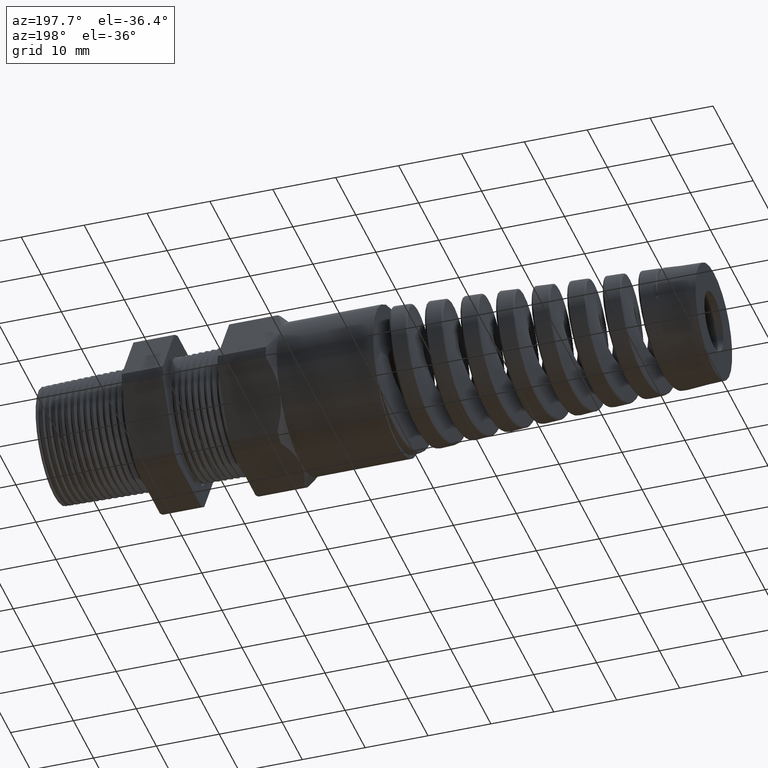
[diagram: clean part render]
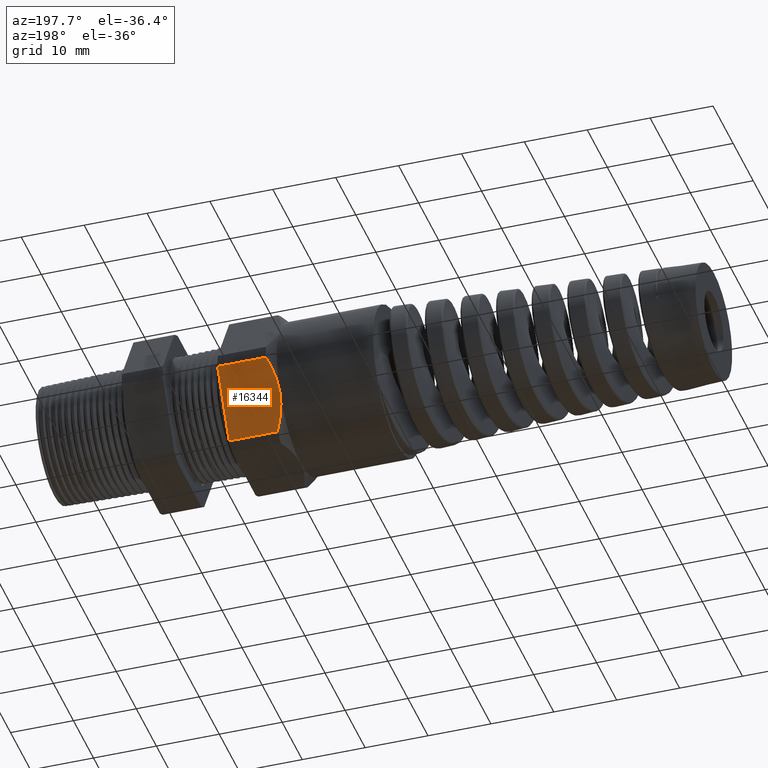
[diagram: same view with one face highlighted and labeled with its STEP entity id]
A machine part, auxiliary view. The second image highlights one B-rep face of the part: STEP entity #16344.
In plain terms, the highlighted planar face has unit normal (0, 0.866, -0.5).
Its self-contained STEP definition (entity closure, byte-faithful):
#2523 = CARTESIAN_POINT ( 'NONE',  ( -1.263700787401574700, 0.4070319397786864600, -0.2350000000000001300 ) ) ;
#2722 = CARTESIAN_POINT ( 'NONE',  ( -1.240759070462158500, 0.4835762490957484200, -0.1024213672325807500 ) ) ;
#2723 = CARTESIAN_POINT ( 'NONE',  ( -1.258755119221330900, 0.4458197490082085300, -0.1678175437001787300 ) ) ;
#2968 = CARTESIAN_POINT ( 'NONE',  ( -1.212000787401574600, 0.5202473208008777700, -0.03890520787129524100 ) ) ;
#2969 = CARTESIAN_POINT ( 'NONE',  ( -1.227654196895982200, 0.5022144712456755300, -0.07013901950615149300 ) ) ;
#3178 = LINE ( 'NONE', #3219, #3218 ) ;
#3179 = CARTESIAN_POINT ( 'NONE',  ( -1.212000787401574800, 0.2938165587564949800, -0.4310947921287047700 ) ) ;
#3194 = CARTESIAN_POINT ( 'NONE',  ( -0.9093700787401572900, 0.2938165587564949800, -0.4310947921287047700 ) ) ;
#3200 = DIRECTION ( 'NONE',  ( 0.0000000000000000000, 0.4999999999999998900, 0.8660254037844386000 ) ) ;
#3201 = DIRECTION ( 'NONE',  ( 0.0000000000000000000, 0.8660254037844387100, -0.4999999999999999400 ) ) ;
#3202 = CARTESIAN_POINT ( 'NONE',  ( 0.2800000000000000300, 0.5202473208008777700, -0.03890520787129524100 ) ) ;
#3203 = AXIS2_PLACEMENT_3D ( 'NONE', #3202, #3201, #3200 ) ;
#3204 = PLANE ( 'NONE',  #3203 ) ;
#3205 = FACE_OUTER_BOUND ( 'NONE', #16341, .T. ) ;
#3217 = DIRECTION ( 'NONE',  ( -1.000000000000000000, 0.0000000000000000000, 0.0000000000000000000 ) ) ;
#3218 = VECTOR ( 'NONE', #3217, 39.37007874015748100 ) ;
#3219 = CARTESIAN_POINT ( 'NONE',  ( 0.2800000000000000300, 0.2938165587564949800, -0.4310947921287047700 ) ) ;
#3226 = CARTESIAN_POINT ( 'NONE',  ( -1.263700787401574400, 0.4266212606411438600, -0.2010703009804542300 ) ) ;
#3227 = CARTESIAN_POINT ( 'NONE',  ( -1.263700787401574700, 0.4070319397786864600, -0.2350000000000001300 ) ) ;
#3234 = B_SPLINE_CURVE_WITH_KNOTS ( 'NONE', 3,
 ( #3227, #3226, #2723, #2722, #2969, #2968 ),
 .UNSPECIFIED., .F., .F.,
 ( 4, 2, 4 ),
 ( 0.005903107334592304700, 0.008852512982428763200, 0.01180191863026522300 ),
 .UNSPECIFIED. ) ;
#3236 = DIRECTION ( 'NONE',  ( 0.0000000000000000000, 0.4999999999999998900, 0.8660254037844386000 ) ) ;
#3237 = VECTOR ( 'NONE', #3236, 39.37007874015748100 ) ;
#3238 = CARTESIAN_POINT ( 'NONE',  ( -0.9093700787401572900, 0.5057819397786863500, -0.06395998275257344700 ) ) ;
#3244 = LINE ( 'NONE', #3238, #3237 ) ;
#3272 = CARTESIAN_POINT ( 'NONE',  ( -1.263700787401574700, 0.4070319397786864600, -0.2350000000000001300 ) ) ;
#3273 = CARTESIAN_POINT ( 'NONE',  ( -1.263700787401574400, 0.4021312490570419000, -0.2434882453220696700 ) ) ;
#3274 = CARTESIAN_POINT ( 'NONE',  ( -1.263390652723889400, 0.3971857355050539300, -0.2520541260636332000 ) ) ;
#3275 = CARTESIAN_POINT ( 'NONE',  ( -1.262158857016450400, 0.3873598765596238400, -0.2690730129851234300 ) ) ;
#3276 = CARTESIAN_POINT ( 'NONE',  ( -1.261241224626671300, 0.3824845463488701400, -0.2775173326138241600 ) ) ;
#3277 = CARTESIAN_POINT ( 'NONE',  ( -1.257637759355490800, 0.3679645453500631800, -0.3026667120697090200 ) ) ;
#3278 = CARTESIAN_POINT ( 'NONE',  ( -1.254101093296777300, 0.3584258972266242100, -0.3191881352550264800 ) ) ;
#3279 = CARTESIAN_POINT ( 'NONE',  ( -1.240557452884053500, 0.3301755151959553400, -0.3681192322653758000 ) ) ;
#3280 = CARTESIAN_POINT ( 'NONE',  ( -1.227634833077310800, 0.3118271010418955400, -0.3998996178185231800 ) ) ;
#3281 = CARTESIAN_POINT ( 'NONE',  ( -1.212000787401574800, 0.2938165587564949800, -0.4310947921287047700 ) ) ;
#3286 = B_SPLINE_CURVE_WITH_KNOTS ( 'NONE', 3,
 ( #3281, #3280, #3279, #3278, #3277, #3276, #3275, #3274, #3273, #3272 ),
 .UNSPECIFIED., .F., .F.,
 ( 4, 2, 2, 2, 4 ),
 ( 2.483251536690325700E-007, 0.002951677829872985600, 0.004427392582232646300, 0.005165249958412475500, 0.005903107334592304700 ),
 .UNSPECIFIED. ) ;
#3797 = VERTEX_POINT ( 'NONE', #5919 ) ;
#3798 = VERTEX_POINT ( 'NONE', #5918 ) ;
#3801 = EDGE_CURVE ( 'NONE', #3798, #3797, #5917, .T. ) ;
#5909 = DIRECTION ( 'NONE',  ( -1.000000000000000000, 0.0000000000000000000, 0.0000000000000000000 ) ) ;
#5910 = VECTOR ( 'NONE', #5909, 39.37007874015748100 ) ;
#5911 = CARTESIAN_POINT ( 'NONE',  ( 0.2800000000000000300, 0.5202473208008777700, -0.03890520787129524100 ) ) ;
#5917 = LINE ( 'NONE', #5911, #5910 ) ;
#5918 = CARTESIAN_POINT ( 'NONE',  ( -0.9093700787401572900, 0.5202473208008778800, -0.03890520787129524800 ) ) ;
#5919 = CARTESIAN_POINT ( 'NONE',  ( -1.212000787401574600, 0.5202473208008777700, -0.03890520787129524100 ) ) ;
#7862 = VERTEX_POINT ( 'NONE', #2523 ) ;
#15136 = ORIENTED_EDGE ( 'NONE', *, *, #16364, .T. ) ;
#15936 = ORIENTED_EDGE ( 'NONE', *, *, #16336, .T. ) ;
#16334 = VERTEX_POINT ( 'NONE', #3179 ) ;
#16336 = EDGE_CURVE ( 'NONE', #16347, #16334, #3178, .T. ) ;
#16341 = EDGE_LOOP ( 'NONE', ( #15936, #15136, #16363, #16360, #16362 ) ) ;
#16344 = ADVANCED_FACE ( 'NONE', ( #3205 ), #3204, .T. ) ;
#16347 = VERTEX_POINT ( 'NONE', #3194 ) ;
#16359 = EDGE_CURVE ( 'NONE', #16347, #3798, #3244, .T. ) ;
#16360 = ORIENTED_EDGE ( 'NONE', *, *, #3801, .F. ) ;
#16361 = EDGE_CURVE ( 'NONE', #7862, #3797, #3234, .T. ) ;
#16362 = ORIENTED_EDGE ( 'NONE', *, *, #16359, .F. ) ;
#16363 = ORIENTED_EDGE ( 'NONE', *, *, #16361, .T. ) ;
#16364 = EDGE_CURVE ( 'NONE', #16334, #7862, #3286, .T. ) ;